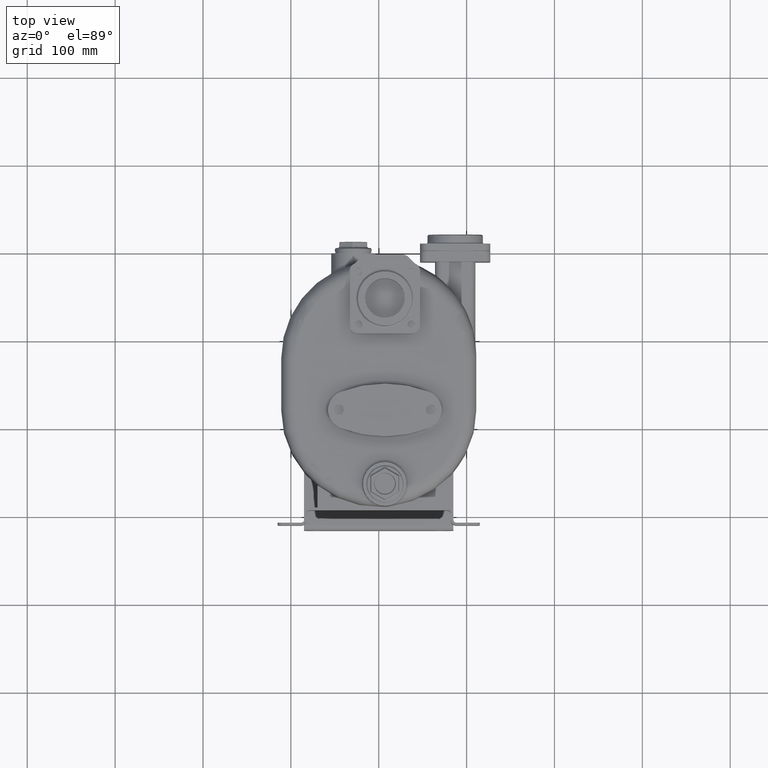
[diagram: clean part render]
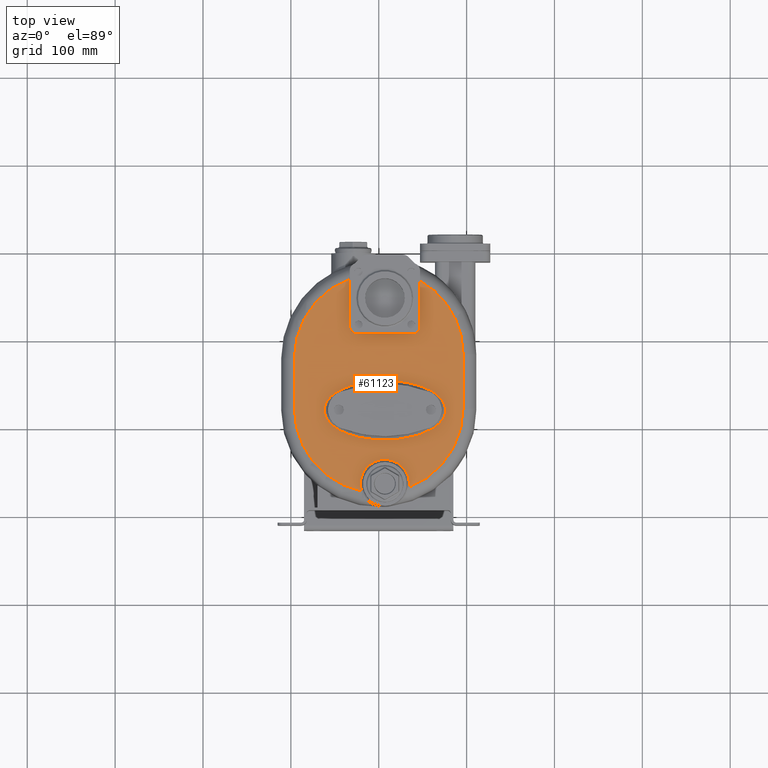
[diagram: same view with one face highlighted and labeled with its STEP entity id]
A machine part, top view. The second image highlights one B-rep face of the part: STEP entity #61123.
In plain terms, the highlighted planar face has unit normal (0, 0, -1).
Its self-contained STEP definition (entity closure, byte-faithful):
#12639=CARTESIAN_POINT('',(7.E0,2.6E1,7.4E1));
#12640=DIRECTION('',(0.E0,0.E0,-1.E0));
#12641=DIRECTION('',(-9.591171022104E-1,-2.830095126451E-1,0.E0));
#12642=AXIS2_PLACEMENT_3D('',#12639,#12640,#12641);
#12649=CARTESIAN_POINT('',(0.E0,1.12E2,7.4E1));
#12650=DIRECTION('',(0.E0,0.E0,1.E0));
#12651=DIRECTION('',(-1.E0,0.E0,0.E0));
#12652=AXIS2_PLACEMENT_3D('',#12649,#12650,#12651);
#12654=DIRECTION('',(0.E0,-1.E0,0.E0));
#12655=VECTOR('',#12654,5.708003202563E1);
#12656=CARTESIAN_POINT('',(-9.6E1,1.690800320256E2,7.4E1));
#12657=LINE('',#12656,#12655);
#12658=CARTESIAN_POINT('',(0.E0,1.690800320256E2,7.4E1));
#12659=DIRECTION('',(0.E0,0.E0,1.E0));
#12660=DIRECTION('',(-3.4375E-1,9.390612000823E-1,0.E0));
#12661=AXIS2_PLACEMENT_3D('',#12658,#12659,#12660);
#12663=CARTESIAN_POINT('',(0.E0,1.736689976975E2,7.4E1));
#12664=DIRECTION('',(0.E0,0.E0,1.E0));
#12665=DIRECTION('',(1.E0,0.E0,0.E0));
#12666=AXIS2_PLACEMENT_3D('',#12663,#12664,#12665);
#12668=DIRECTION('',(0.E0,1.E0,0.E0));
#12669=VECTOR('',#12668,6.166899769750E1);
#12670=CARTESIAN_POINT('',(9.6E1,1.12E2,7.4E1));
#12671=LINE('',#12670,#12669);
#12672=CARTESIAN_POINT('',(0.E0,1.12E2,7.4E1));
#12673=DIRECTION('',(0.E0,0.E0,1.E0));
#12674=DIRECTION('',(3.623258782085E-1,-9.320514781816E-1,0.E0));
#12675=AXIS2_PLACEMENT_3D('',#12672,#12673,#12674);
#12677=CARTESIAN_POINT('',(7.599999999998E1,1.099999999998E2,7.400000634498E1));
#12678=CARTESIAN_POINT('',(7.599999317443E1,1.102135744814E2,7.400001016623E1));
#12679=CARTESIAN_POINT('',(7.599229907980E1,1.106417048539E2,7.399999528184E1));
#12680=CARTESIAN_POINT('',(7.595749155583E1,1.112870308482E2,7.400000126423E1));
#12681=CARTESIAN_POINT('',(7.589893652659E1,1.119349286997E2,7.399999966125E1));
#12682=CARTESIAN_POINT('',(7.581637691769E1,1.125850577622E2,7.400000009077E1));
#12683=CARTESIAN_POINT('',(7.570954380167E1,1.132370469585E2,7.399999997568E1));
#12684=CARTESIAN_POINT('',(7.557808600898E1,1.138903450873E2,7.400000000652E1));
#12685=CARTESIAN_POINT('',(7.542173653598E1,1.145449462327E2,7.399999999825E1));
#12686=CARTESIAN_POINT('',(7.523985690766E1,1.152017572550E2,7.400000000047E1));
#12687=CARTESIAN_POINT('',(7.503159298640E1,1.158614199343E2,7.399999999987E1));
#12688=CARTESIAN_POINT('',(7.479616920723E1,1.165244058653E2,7.400000000003E1));
#12689=CARTESIAN_POINT('',(7.453274117083E1,1.171908225305E2,7.399999999999E1));
#12690=CARTESIAN_POINT('',(7.424040083799E1,1.178607196238E2,7.4E1));
#12691=CARTESIAN_POINT('',(7.391799145068E1,1.185346553187E2,7.4E1));
#12692=CARTESIAN_POINT('',(7.356421515866E1,1.192129695074E2,7.4E1));
#12693=CARTESIAN_POINT('',(7.317765712304E1,1.198960816199E2,7.4E1));
#12694=CARTESIAN_POINT('',(7.275679610768E1,1.205842612227E2,7.4E1));
#12695=CARTESIAN_POINT('',(7.230000907389E1,1.212776921596E2,7.4E1));
#12696=CARTESIAN_POINT('',(7.180534040832E1,1.219768421755E2,7.4E1));
#12697=CARTESIAN_POINT('',(7.127087796199E1,1.226818322072E2,7.4E1));
#12698=CARTESIAN_POINT('',(7.069433660117E1,1.233929679227E2,7.4E1));
#12699=CARTESIAN_POINT('',(7.007338677992E1,1.241104205850E2,7.4E1));
#12700=CARTESIAN_POINT('',(6.940558207864E1,1.248341900215E2,7.4E1));
#12701=CARTESIAN_POINT('',(6.868799005821E1,1.255644851601E2,7.4E1));
#12702=CARTESIAN_POINT('',(6.791792389553E1,1.263011713846E2,7.4E1));
#12703=CARTESIAN_POINT('',(6.709210027617E1,1.270441678286E2,7.4E1));
#12704=CARTESIAN_POINT('',(6.620720784048E1,1.277933244476E2,7.4E1));
#12705=CARTESIAN_POINT('',(6.525995393841E1,1.285482072719E2,7.4E1));
#12706=CARTESIAN_POINT('',(6.424646069119E1,1.293083700499E2,7.4E1));
#12707=CARTESIAN_POINT('',(6.316321637141E1,1.300731653962E2,7.4E1));
#12708=CARTESIAN_POINT('',(6.200622592836E1,1.308416616528E2,7.4E1));
#12709=CARTESIAN_POINT('',(6.077174800670E1,1.316128406981E2,7.4E1));
#12710=CARTESIAN_POINT('',(5.945578958768E1,1.323853297145E2,7.4E1));
#12711=CARTESIAN_POINT('',(5.805453730645E1,1.331576652123E2,7.4E1));
#12712=CARTESIAN_POINT('',(5.656417048403E1,1.339279670653E2,7.4E1));
#12713=CARTESIAN_POINT('',(5.498113656314E1,1.346942018989E2,7.4E1));
#12714=CARTESIAN_POINT('',(5.330204993034E1,1.354539767268E2,7.4E1));
#12715=CARTESIAN_POINT('',(5.152392194266E1,1.362046112394E2,7.4E1));
#12716=CARTESIAN_POINT('',(4.964416015035E1,1.369432083821E2,7.4E1));
#12717=CARTESIAN_POINT('',(4.766079853117E1,1.376664211827E2,7.4E1));
#12718=CARTESIAN_POINT('',(4.557246477209E1,1.383708226925E2,7.4E1));
#12719=CARTESIAN_POINT('',(4.337866750331E1,1.390525436352E2,7.4E1));
#12720=CARTESIAN_POINT('',(4.107977775895E1,1.397076242701E2,7.4E1));
#12721=CARTESIAN_POINT('',(3.867711111201E1,1.403319104407E2,7.4E1));
#12722=CARTESIAN_POINT('',(3.617326376817E1,1.409210464704E2,7.4E1));
#12723=CARTESIAN_POINT('',(3.357168466818E1,1.414708231672E2,7.4E1));
#12724=CARTESIAN_POINT('',(3.087757250381E1,1.419767629115E2,7.4E1));
#12725=CARTESIAN_POINT('',(2.809681585770E1,1.424348584021E2,7.4E1));
#12726=CARTESIAN_POINT('',(2.523725186404E1,1.428408991198E2,7.4E1));
#12727=CARTESIAN_POINT('',(2.230714917523E1,1.431914181211E2,7.4E1));
#12728=CARTESIAN_POINT('',(1.931673476568E1,1.434828678907E2,7.4E1));
#12729=CARTESIAN_POINT('',(1.627641398333E1,1.437126374676E2,7.4E1));
#12730=CARTESIAN_POINT('',(1.319818799272E1,1.438782388689E2,7.4E1));
#12731=CARTESIAN_POINT('',(1.009423949639E1,1.439781204617E2,7.4E1));
#12732=CARTESIAN_POINT('',(6.977418436665E0,1.440112139186E2,7.4E1));
#12733=CARTESIAN_POINT('',(3.860920509929E0,1.439771249324E2,7.4E1));
#12734=CARTESIAN_POINT('',(7.577303781682E-1,1.438763799375E2,7.4E1));
#12735=CARTESIAN_POINT('',(-2.319426095937E0,1.437097907932E2,7.4E1));
#12736=CARTESIAN_POINT('',(-5.357934889954E0,1.434793407175E2,7.4E1));
#12737=CARTESIAN_POINT('',(-8.346633380043E0,1.431870826241E2,7.4E1));
#12738=CARTESIAN_POINT('',(-1.127430390097E1,1.428360678007E2,7.4E1));
#12739=CARTESIAN_POINT('',(-1.413160437940E1,1.424294865696E2,7.4E1));
#12740=CARTESIAN_POINT('',(-1.690954895437E1,1.419711303172E2,7.4E1));
#12741=CARTESIAN_POINT('',(-1.960101600633E1,1.414649366931E2,7.4E1));
#12742=CARTESIAN_POINT('',(-2.219962175430E1,1.409151600533E2,7.4E1));
#12743=CARTESIAN_POINT('',(-2.470074139662E1,1.403260288292E2,7.4E1));
#12744=CARTESIAN_POINT('',(-2.710051781887E1,1.397019705918E2,7.4E1));
#12745=CARTESIAN_POINT('',(-2.939674319626E1,1.390471318986E2,7.4E1));
#12746=CARTESIAN_POINT('',(-3.158789397878E1,1.383658131237E2,7.4E1));
#12747=CARTESIAN_POINT('',(-3.367379906058E1,1.376618393616E2,7.4E1));
#12748=CARTESIAN_POINT('',(-3.565493742292E1,1.369391099810E2,7.4E1));
#12749=CARTESIAN_POINT('',(-3.753269212327E1,1.362010285349E2,7.4E1));
#12750=CARTESIAN_POINT('',(-3.930906005177E1,1.354508922798E2,7.4E1));
#12751=CARTESIAN_POINT('',(-4.098656224660E1,1.346916539059E2,7.4E1));
#12752=CARTESIAN_POINT('',(-4.256819146798E1,1.339259401043E2,7.4E1));
#12753=CARTESIAN_POINT('',(-4.405728549558E1,1.331561849003E2,7.4E1));
#12754=CARTESIAN_POINT('',(-4.545738668377E1,1.323844136909E2,7.4E1));
#12755=CARTESIAN_POINT('',(-4.677227229394E1,1.316125039983E2,7.4E1));
#12756=CARTESIAN_POINT('',(-4.800579837115E1,1.308419336967E2,7.4E1));
#12757=CARTESIAN_POINT('',(-4.916185351256E1,1.300740763317E2,7.4E1));
#12758=CARTESIAN_POINT('',(-5.024430181801E1,1.293099355538E2,7.4E1));
#12759=CARTESIAN_POINT('',(-5.125701375160E1,1.285504668914E2,7.4E1));
#12760=CARTESIAN_POINT('',(-5.220365574523E1,1.277962168413E2,7.4E1));
#12761=CARTESIAN_POINT('',(-5.308803891076E1,1.270477153087E2,7.4E1));
#12762=CARTESIAN_POINT('',(-5.391342986184E1,1.263053169472E2,7.4E1));
#12763=CARTESIAN_POINT('',(-5.468333782490E1,1.255690695476E2,7.4E1));
#12764=CARTESIAN_POINT('',(-5.540078986789E1,1.248392173036E2,7.4E1));
#12765=CARTESIAN_POINT('',(-5.606862851303E1,1.241157292662E2,7.4E1));
#12766=CARTESIAN_POINT('',(-5.668970867633E1,1.233984921473E2,7.4E1));
#12767=CARTESIAN_POINT('',(-5.726640586485E1,1.226875283520E2,7.4E1));
#12768=CARTESIAN_POINT('',(-5.780117041657E1,1.219825309272E2,7.4E1));
#12769=CARTESIAN_POINT('',(-5.829611144136E1,1.212834019989E2,7.4E1));
#12770=CARTESIAN_POINT('',(-5.875321981832E1,1.205898906226E2,7.4E1));
#12771=CARTESIAN_POINT('',(-5.917436176240E1,1.199016766347E2,7.4E1));
#12772=CARTESIAN_POINT('',(-5.956119302175E1,1.192185422172E2,7.4E1));
#12773=CARTESIAN_POINT('',(-5.991528472895E1,1.185400593933E2,7.4E1));
#12774=CARTESIAN_POINT('',(-6.023798058331E1,1.178660275802E2,7.4E1));
#12775=CARTESIAN_POINT('',(-6.053055630618E1,1.171960603412E2,
7.399999999999E1));
#12776=CARTESIAN_POINT('',(-6.079415406132E1,1.165297821705E2,
7.400000000003E1));
#12777=CARTESIAN_POINT('',(-6.102984478630E1,1.158666869958E2,
7.399999999990E1));
#12778=CARTESIAN_POINT('',(-6.123840842812E1,1.152065858171E2,
7.400000000039E1));
#12779=CARTESIAN_POINT('',(-6.142060472162E1,1.145494548329E2,
7.399999999854E1));
#12780=CARTESIAN_POINT('',(-6.157710486507E1,1.138948090072E2,
7.400000000544E1));
#12781=CARTESIAN_POINT('',(-6.170864197913E1,1.132418595859E2,
7.399999997968E1));
#12782=CARTESIAN_POINT('',(-6.181572289521E1,1.125897763170E2,
7.400000007583E1));
#12783=CARTESIAN_POINT('',(-6.189849447894E1,1.119390170605E2,
7.399999971702E1));
#12784=CARTESIAN_POINT('',(-6.195728424412E1,1.112900955124E2,
7.400000105611E1));
#12785=CARTESIAN_POINT('',(-6.199227653355E1,1.106433925375E2,
7.399999605855E1));
#12786=CARTESIAN_POINT('',(-6.199999625812E1,1.102141695336E2,
7.400000849264E1));
#12787=CARTESIAN_POINT('',(-6.199999999998E1,1.100000000002E2,
7.400000634498E1));
#12789=CARTESIAN_POINT('',(-6.199999999998E1,1.100000000002E2,
7.400000634498E1));
#12790=CARTESIAN_POINT('',(-6.199999317443E1,1.097864255186E2,
7.400001016623E1));
#12791=CARTESIAN_POINT('',(-6.199229907980E1,1.093582951461E2,
7.399999528184E1));
#12792=CARTESIAN_POINT('',(-6.195749155583E1,1.087129691518E2,
7.400000126423E1));
#12793=CARTESIAN_POINT('',(-6.189893652659E1,1.080650713003E2,
7.399999966125E1));
#12794=CARTESIAN_POINT('',(-6.181637691769E1,1.074149422378E2,
7.400000009077E1));
#12795=CARTESIAN_POINT('',(-6.170954380167E1,1.067629530415E2,
7.399999997568E1));
#12796=CARTESIAN_POINT('',(-6.157808600898E1,1.061096549127E2,
7.400000000652E1));
#12797=CARTESIAN_POINT('',(-6.142173653598E1,1.054550537673E2,
7.399999999825E1));
#12798=CARTESIAN_POINT('',(-6.123985690766E1,1.047982427450E2,
7.400000000047E1));
#12799=CARTESIAN_POINT('',(-6.103159298640E1,1.041385800657E2,
7.399999999987E1));
#12800=CARTESIAN_POINT('',(-6.079616920723E1,1.034755941347E2,
7.400000000003E1));
#12801=CARTESIAN_POINT('',(-6.053274117083E1,1.028091774695E2,
7.399999999999E1));
#12802=CARTESIAN_POINT('',(-6.024040083799E1,1.021392803762E2,7.4E1));
#12803=CARTESIAN_POINT('',(-5.991799145068E1,1.014653446813E2,7.4E1));
#12804=CARTESIAN_POINT('',(-5.956421515867E1,1.007870304926E2,7.4E1));
#12805=CARTESIAN_POINT('',(-5.917765712304E1,1.001039183801E2,7.4E1));
#12806=CARTESIAN_POINT('',(-5.875679610768E1,9.941573877734E1,7.4E1));
#12807=CARTESIAN_POINT('',(-5.830000907389E1,9.872230784045E1,7.4E1));
#12808=CARTESIAN_POINT('',(-5.780534040832E1,9.802315782449E1,7.4E1));
#12809=CARTESIAN_POINT('',(-5.727087796199E1,9.731816779279E1,7.4E1));
#12810=CARTESIAN_POINT('',(-5.669433660117E1,9.660703207734E1,7.4E1));
#12811=CARTESIAN_POINT('',(-5.607338677993E1,9.588957941500E1,7.4E1));
#12812=CARTESIAN_POINT('',(-5.540558207864E1,9.516580997849E1,7.4E1));
#12813=CARTESIAN_POINT('',(-5.468799005822E1,9.443551483985E1,7.4E1));
#12814=CARTESIAN_POINT('',(-5.391792389553E1,9.369882861536E1,7.4E1));
#12815=CARTESIAN_POINT('',(-5.309210027617E1,9.295583217136E1,7.4E1));
#12816=CARTESIAN_POINT('',(-5.220720784048E1,9.220667555239E1,7.4E1));
#12817=CARTESIAN_POINT('',(-5.125995393841E1,9.145179272807E1,7.4E1));
#12818=CARTESIAN_POINT('',(-5.024646069120E1,9.069162995005E1,7.4E1));
#12819=CARTESIAN_POINT('',(-4.916321637141E1,8.992683460381E1,7.4E1));
#12820=CARTESIAN_POINT('',(-4.800622592836E1,8.915833834719E1,7.4E1));
#12821=CARTESIAN_POINT('',(-4.677174800671E1,8.838715930190E1,7.4E1));
#12822=CARTESIAN_POINT('',(-4.545578958768E1,8.761467028553E1,7.4E1));
#12823=CARTESIAN_POINT('',(-4.405453730645E1,8.684233478774E1,7.4E1));
#12824=CARTESIAN_POINT('',(-4.256417048403E1,8.607203293465E1,7.4E1));
#12825=CARTESIAN_POINT('',(-4.098113656314E1,8.530579810112E1,7.4E1));
#12826=CARTESIAN_POINT('',(-3.930204993034E1,8.454602327321E1,7.4E1));
#12827=CARTESIAN_POINT('',(-3.752392194267E1,8.379538876064E1,7.4E1));
#12828=CARTESIAN_POINT('',(-3.564416015036E1,8.305679161787E1,7.4E1));
#12829=CARTESIAN_POINT('',(-3.366079853117E1,8.233357881726E1,7.4E1));
#12830=CARTESIAN_POINT('',(-3.157246477210E1,8.162917730751E1,7.4E1));
#12831=CARTESIAN_POINT('',(-2.937866750332E1,8.094745636475E1,7.4E1));
#12832=CARTESIAN_POINT('',(-2.707977775896E1,8.029237572995E1,7.4E1));
#12833=CARTESIAN_POINT('',(-2.467711111202E1,7.966808955932E1,7.4E1));
#12834=CARTESIAN_POINT('',(-2.217326376818E1,7.907895352958E1,7.4E1));
#12835=CARTESIAN_POINT('',(-1.957168466819E1,7.852917683277E1,7.4E1));
#12836=CARTESIAN_POINT('',(-1.687757250381E1,7.802323708855E1,7.4E1));
#12837=CARTESIAN_POINT('',(-1.409681585771E1,7.756514159790E1,7.4E1));
#12838=CARTESIAN_POINT('',(-1.123725186405E1,7.715910088021E1,7.4E1));
#12839=CARTESIAN_POINT('',(-8.307149175230E0,7.680858187887E1,7.4E1));
#12840=CARTESIAN_POINT('',(-5.316734765686E0,7.651713210934E1,7.4E1));
#12841=CARTESIAN_POINT('',(-2.276413983332E0,7.628736253242E1,7.4E1));
#12842=CARTESIAN_POINT('',(8.018120072717E-1,7.612176113114E1,7.4E1));
#12843=CARTESIAN_POINT('',(3.905760503602E0,7.602187953829E1,7.4E1));
#12844=CARTESIAN_POINT('',(7.022581563332E0,7.598878608137E1,7.4E1));
#12845=CARTESIAN_POINT('',(1.013907949007E1,7.602287506757E1,7.4E1));
#12846=CARTESIAN_POINT('',(1.324226962183E1,7.612362006246E1,7.4E1));
#12847=CARTESIAN_POINT('',(1.631942609593E1,7.629020920675E1,7.4E1));
#12848=CARTESIAN_POINT('',(1.935793488995E1,7.652065928252E1,7.4E1));
#12849=CARTESIAN_POINT('',(2.234663338004E1,7.681291737587E1,7.4E1));
#12850=CARTESIAN_POINT('',(2.527430390097E1,7.716393219935E1,7.4E1));
#12851=CARTESIAN_POINT('',(2.813160437940E1,7.757051343036E1,7.4E1));
#12852=CARTESIAN_POINT('',(3.090954895437E1,7.802886968283E1,7.4E1));
#12853=CARTESIAN_POINT('',(3.360101600633E1,7.853506330688E1,7.4E1));
#12854=CARTESIAN_POINT('',(3.619962175430E1,7.908483994672E1,7.4E1));
#12855=CARTESIAN_POINT('',(3.870074139662E1,7.967397117081E1,7.4E1));
#12856=CARTESIAN_POINT('',(4.110051781887E1,8.029802940824E1,7.4E1));
#12857=CARTESIAN_POINT('',(4.339674319626E1,8.095286810144E1,7.4E1));
#12858=CARTESIAN_POINT('',(4.558789397878E1,8.163418687627E1,7.4E1));
#12859=CARTESIAN_POINT('',(4.767379906058E1,8.233816063839E1,7.4E1));
#12860=CARTESIAN_POINT('',(4.965493742292E1,8.306089001904E1,7.4E1));
#12861=CARTESIAN_POINT('',(5.153269212327E1,8.379897146508E1,7.4E1));
#12862=CARTESIAN_POINT('',(5.330906005177E1,8.454910772015E1,7.4E1));
#12863=CARTESIAN_POINT('',(5.498656224660E1,8.530834609415E1,7.4E1));
#12864=CARTESIAN_POINT('',(5.656819146798E1,8.607405989573E1,7.4E1));
#12865=CARTESIAN_POINT('',(5.805728549558E1,8.684381509967E1,7.4E1));
#12866=CARTESIAN_POINT('',(5.945738668377E1,8.761558630909E1,7.4E1));
#12867=CARTESIAN_POINT('',(6.077227229393E1,8.838749600166E1,7.4E1));
#12868=CARTESIAN_POINT('',(6.200579837115E1,8.915806630326E1,7.4E1));
#12869=CARTESIAN_POINT('',(6.316185351256E1,8.992592366835E1,7.4E1));
#12870=CARTESIAN_POINT('',(6.424430181801E1,9.069006444616E1,7.4E1));
#12871=CARTESIAN_POINT('',(6.525701375160E1,9.144953310861E1,7.4E1));
#12872=CARTESIAN_POINT('',(6.620365574523E1,9.220378315875E1,7.4E1));
#12873=CARTESIAN_POINT('',(6.708803891076E1,9.295228469129E1,7.4E1));
#12874=CARTESIAN_POINT('',(6.791342986184E1,9.369468305279E1,7.4E1));
#12875=CARTESIAN_POINT('',(6.868333782490E1,9.443093045238E1,7.4E1));
#12876=CARTESIAN_POINT('',(6.940078986789E1,9.516078269635E1,7.4E1));
#12877=CARTESIAN_POINT('',(7.006862851303E1,9.588427073376E1,7.4E1));
#12878=CARTESIAN_POINT('',(7.068970867633E1,9.660150785275E1,7.4E1));
#12879=CARTESIAN_POINT('',(7.126640586485E1,9.731247164803E1,7.4E1));
#12880=CARTESIAN_POINT('',(7.180117041657E1,9.801746907277E1,7.4E1));
#12881=CARTESIAN_POINT('',(7.229611144136E1,9.871659800113E1,7.4E1));
#12882=CARTESIAN_POINT('',(7.275321981832E1,9.941010937740E1,7.4E1));
#12883=CARTESIAN_POINT('',(7.317436176240E1,1.000983233653E2,7.4E1));
#12884=CARTESIAN_POINT('',(7.356119302175E1,1.007814577828E2,7.4E1));
#12885=CARTESIAN_POINT('',(7.391528472895E1,1.014599406067E2,7.4E1));
#12886=CARTESIAN_POINT('',(7.423798058331E1,1.021339724198E2,7.4E1));
#12887=CARTESIAN_POINT('',(7.453055630618E1,1.028039396588E2,7.399999999999E1));
#12888=CARTESIAN_POINT('',(7.479415406132E1,1.034702178295E2,7.400000000003E1));
#12889=CARTESIAN_POINT('',(7.502984478630E1,1.041333130042E2,7.399999999990E1));
#12890=CARTESIAN_POINT('',(7.523840842812E1,1.047934141829E2,7.400000000039E1));
#12891=CARTESIAN_POINT('',(7.542060472162E1,1.054505451671E2,7.399999999854E1));
#12892=CARTESIAN_POINT('',(7.557710486507E1,1.061051909928E2,7.400000000544E1));
#12893=CARTESIAN_POINT('',(7.570864197913E1,1.067581404141E2,7.399999997968E1));
#12894=CARTESIAN_POINT('',(7.581572289521E1,1.074102236830E2,7.400000007583E1));
#12895=CARTESIAN_POINT('',(7.589849447894E1,1.080609829395E2,7.399999971702E1));
#12896=CARTESIAN_POINT('',(7.595728424412E1,1.087099044876E2,7.400000105611E1));
#12897=CARTESIAN_POINT('',(7.599227653355E1,1.093566074625E2,7.399999605855E1));
#12898=CARTESIAN_POINT('',(7.599999625812E1,1.097858304664E2,7.400000849264E1));
#12899=CARTESIAN_POINT('',(7.599999999998E1,1.099999999998E2,7.400000634498E1));
#12959=CARTESIAN_POINT('',(-1.985527873442E1,1.807573326154E1,
7.399999609717E1));
#13441=DIRECTION('',(0.E0,1.E0,0.E0));
#13442=VECTOR('',#13441,5.237682289921E1);
#13443=CARTESIAN_POINT('',(4.7E1,2.05E2,7.4E1));
#13444=LINE('',#13443,#13442);
#13470=DIRECTION('',(1.E0,0.E0,0.E0));
#13471=VECTOR('',#13470,6.4E1);
#13472=CARTESIAN_POINT('',(-2.5E1,1.97E2,7.4E1));
#13473=LINE('',#13472,#13471);
#13499=DIRECTION('',(0.E0,-1.E0,0.E0));
#13500=VECTOR('',#13499,5.422990723353E1);
#13501=CARTESIAN_POINT('',(-3.3E1,2.592299072335E2,7.4E1));
#13502=LINE('',#13501,#13500);
#15353=CARTESIAN_POINT('',(-2.5E1,2.05E2,7.4E1));
#15354=DIRECTION('',(0.E0,0.E0,-1.E0));
#15355=DIRECTION('',(0.E0,-1.E0,0.E0));
#15356=AXIS2_PLACEMENT_3D('',#15353,#15354,#15355);
#15376=CARTESIAN_POINT('',(3.9E1,2.05E2,7.4E1));
#15377=DIRECTION('',(0.E0,0.E0,-1.E0));
#15378=DIRECTION('',(1.E0,0.E0,0.E0));
#15379=AXIS2_PLACEMENT_3D('',#15376,#15377,#15378);
#15381=CARTESIAN_POINT('',(3.478328408610E1,2.252305816357E1,7.399999536927E1));
#38325=CARTESIAN_POINT('',(-2.5E1,1.97E2,7.4E1));
#38326=CARTESIAN_POINT('',(3.9E1,1.97E2,7.4E1));
#38327=VERTEX_POINT('',#38325);
#38328=VERTEX_POINT('',#38326);
#38329=CARTESIAN_POINT('',(4.7E1,2.05E2,7.4E1));
#38330=VERTEX_POINT('',#38329);
#38331=CARTESIAN_POINT('',(-3.3E1,2.05E2,7.4E1));
#38332=VERTEX_POINT('',#38331);
#38341=CARTESIAN_POINT('',(9.6E1,1.736689976975E2,7.4E1));
#38342=CARTESIAN_POINT('',(4.7E1,2.573768228992E2,7.4E1));
#38343=VERTEX_POINT('',#38341);
#38344=VERTEX_POINT('',#38342);
#38345=CARTESIAN_POINT('',(9.6E1,1.12E2,7.4E1));
#38346=VERTEX_POINT('',#38345);
#38349=CARTESIAN_POINT('',(-9.6E1,1.690800320256E2,7.4E1));
#38350=CARTESIAN_POINT('',(-9.6E1,1.12E2,7.4E1));
#38351=VERTEX_POINT('',#38349);
#38352=VERTEX_POINT('',#38350);
#38357=CARTESIAN_POINT('',(-3.3E1,2.592299072335E2,7.4E1));
#38358=VERTEX_POINT('',#38357);
#38388=VERTEX_POINT('',#12677);
#38389=VERTEX_POINT('',#12787);
#38403=VERTEX_POINT('',#15381);
#38408=VERTEX_POINT('',#12959);
#61087=CARTESIAN_POINT('',(0.E0,1.1E2,7.4E1));
#61088=DIRECTION('',(0.E0,0.E0,-1.E0));
#61089=DIRECTION('',(-1.E0,0.E0,0.E0));
#61090=AXIS2_PLACEMENT_3D('',#61087,#61088,#61089);
#61091=PLANE('',#61090);
#61092=ORIENTED_EDGE('',*,*,#61076,.F.);
#61094=ORIENTED_EDGE('',*,*,#61093,.F.);
#61096=ORIENTED_EDGE('',*,*,#61095,.F.);
#61098=ORIENTED_EDGE('',*,*,#61097,.F.);
#61100=ORIENTED_EDGE('',*,*,#61099,.T.);
#61102=ORIENTED_EDGE('',*,*,#61101,.F.);
#61104=ORIENTED_EDGE('',*,*,#61103,.T.);
#61106=ORIENTED_EDGE('',*,*,#61105,.F.);
#61108=ORIENTED_EDGE('',*,*,#61107,.T.);
#61110=ORIENTED_EDGE('',*,*,#61109,.F.);
#61112=ORIENTED_EDGE('',*,*,#61111,.F.);
#61114=ORIENTED_EDGE('',*,*,#61113,.F.);
#61115=EDGE_LOOP('',(#61092,#61094,#61096,#61098,#61100,#61102,#61104,#61106,
#61108,#61110,#61112,#61114));
#61116=FACE_OUTER_BOUND('',#61115,.F.);
#61118=ORIENTED_EDGE('',*,*,#61117,.T.);
#61120=ORIENTED_EDGE('',*,*,#61119,.T.);
#61121=EDGE_LOOP('',(#61118,#61120));
#61122=FACE_BOUND('',#61121,.F.);
#61123=ADVANCED_FACE('',(#61116,#61122),#61091,.F.);
#12643=CIRCLE('',#12642,2.8E1);
#12653=CIRCLE('',#12652,9.6E1);
#12662=CIRCLE('',#12661,9.6E1);
#12667=CIRCLE('',#12666,9.6E1);
#12676=CIRCLE('',#12675,9.6E1);
#12788=B_SPLINE_CURVE_WITH_KNOTS('',3,(#12677,#12678,#12679,#12680,#12681,
#12682,#12683,#12684,#12685,#12686,#12687,#12688,#12689,#12690,#12691,#12692,
#12693,#12694,#12695,#12696,#12697,#12698,#12699,#12700,#12701,#12702,#12703,
#12704,#12705,#12706,#12707,#12708,#12709,#12710,#12711,#12712,#12713,#12714,
#12715,#12716,#12717,#12718,#12719,#12720,#12721,#12722,#12723,#12724,#12725,
#12726,#12727,#12728,#12729,#12730,#12731,#12732,#12733,#12734,#12735,#12736,
#12737,#12738,#12739,#12740,#12741,#12742,#12743,#12744,#12745,#12746,#12747,
#12748,#12749,#12750,#12751,#12752,#12753,#12754,#12755,#12756,#12757,#12758,
#12759,#12760,#12761,#12762,#12763,#12764,#12765,#12766,#12767,#12768,#12769,
#12770,#12771,#12772,#12773,#12774,#12775,#12776,#12777,#12778,#12779,#12780,
#12781,#12782,#12783,#12784,#12785,#12786,#12787),.UNSPECIFIED.,.F.,.F.,(4,1,1,
1,1,1,1,1,1,1,1,1,1,1,1,1,1,1,1,1,1,1,1,1,1,1,1,1,1,1,1,1,1,1,1,1,1,1,1,1,1,1,1,
1,1,1,1,1,1,1,1,1,1,1,1,1,1,1,1,1,1,1,1,1,1,1,1,1,1,1,1,1,1,1,1,1,1,1,1,1,1,1,1,
1,1,1,1,1,1,1,1,1,1,1,1,1,1,1,1,1,1,1,1,1,1,1,1,1,4),(0.E0,9.259259259259E-3,
1.851851851852E-2,2.777777777778E-2,3.703703703704E-2,4.629629629630E-2,
5.555555555556E-2,6.481481481481E-2,7.407407407407E-2,8.333333333333E-2,
9.259259259259E-2,1.018518518519E-1,1.111111111111E-1,1.203703703704E-1,
1.296296296296E-1,1.388888888889E-1,1.481481481481E-1,1.574074074074E-1,
1.666666666667E-1,1.759259259259E-1,1.851851851852E-1,1.944444444444E-1,
2.037037037037E-1,2.129629629630E-1,2.222222222222E-1,2.314814814815E-1,
2.407407407407E-1,2.5E-1,2.592592592593E-1,2.685185185185E-1,2.777777777778E-1,
2.870370370370E-1,2.962962962963E-1,3.055555555556E-1,3.148148148148E-1,
3.240740740741E-1,3.333333333333E-1,3.425925925926E-1,3.518518518519E-1,
3.611111111111E-1,3.703703703704E-1,3.796296296296E-1,3.888888888889E-1,
3.981481481481E-1,4.074074074074E-1,4.166666666667E-1,4.259259259259E-1,
4.351851851852E-1,4.444444444444E-1,4.537037037037E-1,4.629629629630E-1,
4.722222222222E-1,4.814814814815E-1,4.907407407407E-1,5.E-1,5.092592592593E-1,
5.185185185185E-1,5.277777777778E-1,5.370370370370E-1,5.462962962963E-1,
5.555555555556E-1,5.648148148148E-1,5.740740740741E-1,5.833333333333E-1,
5.925925925926E-1,6.018518518519E-1,6.111111111111E-1,6.203703703704E-1,
6.296296296296E-1,6.388888888889E-1,6.481481481481E-1,6.574074074074E-1,
6.666666666667E-1,6.759259259259E-1,6.851851851852E-1,6.944444444444E-1,
7.037037037037E-1,7.129629629630E-1,7.222222222222E-1,7.314814814815E-1,
7.407407407407E-1,7.5E-1,7.592592592593E-1,7.685185185185E-1,7.777777777778E-1,
7.870370370370E-1,7.962962962963E-1,8.055555555556E-1,8.148148148148E-1,
8.240740740741E-1,8.333333333333E-1,8.425925925926E-1,8.518518518519E-1,
8.611111111111E-1,8.703703703704E-1,8.796296296296E-1,8.888888888889E-1,
8.981481481481E-1,9.074074074074E-1,9.166666666667E-1,9.259259259259E-1,
9.351851851852E-1,9.444444444444E-1,9.537037037037E-1,9.629629629630E-1,
9.722222222222E-1,9.814814814815E-1,9.907407407407E-1,1.E0),.UNSPECIFIED.);
#12900=B_SPLINE_CURVE_WITH_KNOTS('',3,(#12789,#12790,#12791,#12792,#12793,
#12794,#12795,#12796,#12797,#12798,#12799,#12800,#12801,#12802,#12803,#12804,
#12805,#12806,#12807,#12808,#12809,#12810,#12811,#12812,#12813,#12814,#12815,
#12816,#12817,#12818,#12819,#12820,#12821,#12822,#12823,#12824,#12825,#12826,
#12827,#12828,#12829,#12830,#12831,#12832,#12833,#12834,#12835,#12836,#12837,
#12838,#12839,#12840,#12841,#12842,#12843,#12844,#12845,#12846,#12847,#12848,
#12849,#12850,#12851,#12852,#12853,#12854,#12855,#12856,#12857,#12858,#12859,
#12860,#12861,#12862,#12863,#12864,#12865,#12866,#12867,#12868,#12869,#12870,
#12871,#12872,#12873,#12874,#12875,#12876,#12877,#12878,#12879,#12880,#12881,
#12882,#12883,#12884,#12885,#12886,#12887,#12888,#12889,#12890,#12891,#12892,
#12893,#12894,#12895,#12896,#12897,#12898,#12899),.UNSPECIFIED.,.F.,.F.,(4,1,1,
1,1,1,1,1,1,1,1,1,1,1,1,1,1,1,1,1,1,1,1,1,1,1,1,1,1,1,1,1,1,1,1,1,1,1,1,1,1,1,1,
1,1,1,1,1,1,1,1,1,1,1,1,1,1,1,1,1,1,1,1,1,1,1,1,1,1,1,1,1,1,1,1,1,1,1,1,1,1,1,1,
1,1,1,1,1,1,1,1,1,1,1,1,1,1,1,1,1,1,1,1,1,1,1,1,1,4),(0.E0,9.259259259259E-3,
1.851851851852E-2,2.777777777778E-2,3.703703703704E-2,4.629629629630E-2,
5.555555555556E-2,6.481481481481E-2,7.407407407407E-2,8.333333333333E-2,
9.259259259259E-2,1.018518518519E-1,1.111111111111E-1,1.203703703704E-1,
1.296296296296E-1,1.388888888889E-1,1.481481481481E-1,1.574074074074E-1,
1.666666666667E-1,1.759259259259E-1,1.851851851852E-1,1.944444444444E-1,
2.037037037037E-1,2.129629629630E-1,2.222222222222E-1,2.314814814815E-1,
2.407407407407E-1,2.5E-1,2.592592592593E-1,2.685185185185E-1,2.777777777778E-1,
2.870370370370E-1,2.962962962963E-1,3.055555555556E-1,3.148148148148E-1,
3.240740740741E-1,3.333333333333E-1,3.425925925926E-1,3.518518518519E-1,
3.611111111111E-1,3.703703703704E-1,3.796296296296E-1,3.888888888889E-1,
3.981481481481E-1,4.074074074074E-1,4.166666666667E-1,4.259259259259E-1,
4.351851851852E-1,4.444444444444E-1,4.537037037037E-1,4.629629629630E-1,
4.722222222222E-1,4.814814814815E-1,4.907407407407E-1,5.E-1,5.092592592593E-1,
5.185185185185E-1,5.277777777778E-1,5.370370370370E-1,5.462962962963E-1,
5.555555555556E-1,5.648148148148E-1,5.740740740741E-1,5.833333333333E-1,
5.925925925926E-1,6.018518518519E-1,6.111111111111E-1,6.203703703704E-1,
6.296296296296E-1,6.388888888889E-1,6.481481481481E-1,6.574074074074E-1,
6.666666666667E-1,6.759259259259E-1,6.851851851852E-1,6.944444444444E-1,
7.037037037037E-1,7.129629629630E-1,7.222222222222E-1,7.314814814815E-1,
7.407407407407E-1,7.5E-1,7.592592592593E-1,7.685185185185E-1,7.777777777778E-1,
7.870370370370E-1,7.962962962963E-1,8.055555555556E-1,8.148148148148E-1,
8.240740740741E-1,8.333333333333E-1,8.425925925926E-1,8.518518518519E-1,
8.611111111111E-1,8.703703703704E-1,8.796296296296E-1,8.888888888889E-1,
8.981481481481E-1,9.074074074074E-1,9.166666666667E-1,9.259259259259E-1,
9.351851851852E-1,9.444444444444E-1,9.537037037037E-1,9.629629629630E-1,
9.722222222222E-1,9.814814814815E-1,9.907407407407E-1,1.E0),.UNSPECIFIED.);
#15357=CIRCLE('',#15356,8.E0);
#15380=CIRCLE('',#15379,8.E0);
#61076=EDGE_CURVE('',#38408,#38403,#12643,.T.);
#61093=EDGE_CURVE('',#38352,#38408,#12653,.T.);
#61095=EDGE_CURVE('',#38351,#38352,#12657,.T.);
#61097=EDGE_CURVE('',#38358,#38351,#12662,.T.);
#61099=EDGE_CURVE('',#38358,#38332,#13502,.T.);
#61101=EDGE_CURVE('',#38327,#38332,#15357,.T.);
#61103=EDGE_CURVE('',#38327,#38328,#13473,.T.);
#61105=EDGE_CURVE('',#38330,#38328,#15380,.T.);
#61107=EDGE_CURVE('',#38330,#38344,#13444,.T.);
#61109=EDGE_CURVE('',#38343,#38344,#12667,.T.);
#61111=EDGE_CURVE('',#38346,#38343,#12671,.T.);
#61113=EDGE_CURVE('',#38403,#38346,#12676,.T.);
#61117=EDGE_CURVE('',#38388,#38389,#12788,.T.);
#61119=EDGE_CURVE('',#38389,#38388,#12900,.T.);